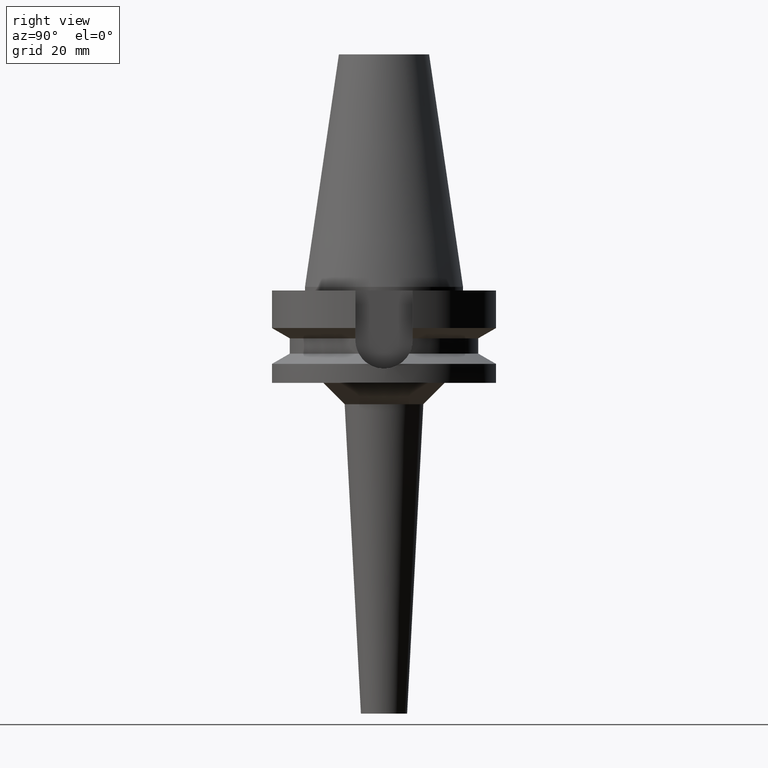
[diagram: clean part render]
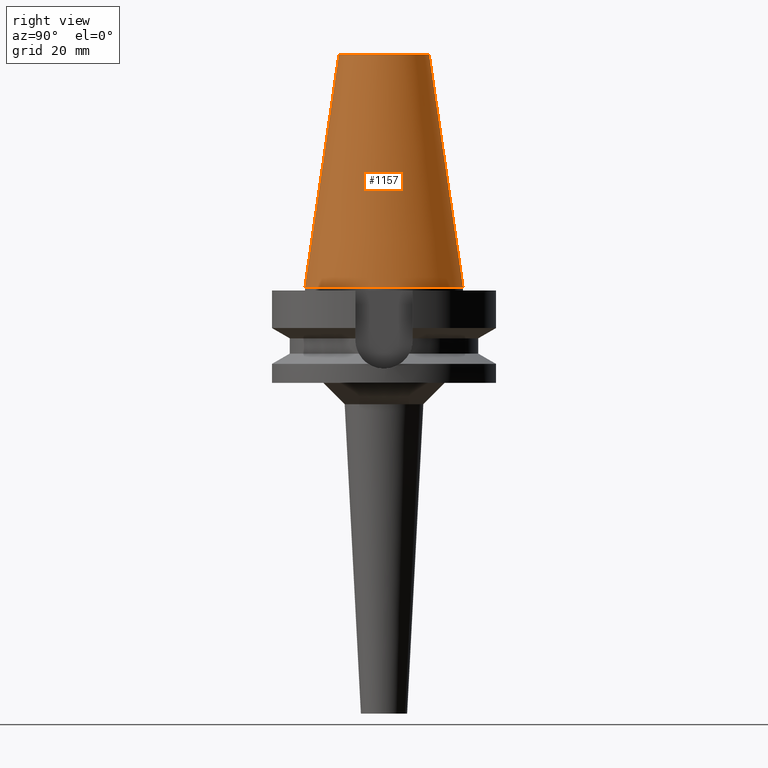
[diagram: same view with one face highlighted and labeled with its STEP entity id]
A machine part, right view. The second image highlights one B-rep face of the part: STEP entity #1157.
In plain terms, the highlighted conical surface has half-angle 8.297 deg.
Its self-contained STEP definition (entity closure, byte-faithful):
#26=CARTESIAN_POINT('',(0.E0,1.625106302469E-14,6.54E1));
#27=DIRECTION('',(0.E0,0.E0,-1.E0));
#28=DIRECTION('',(0.E0,1.E0,0.E0));
#29=AXIS2_PLACEMENT_3D('',#26,#27,#28);
#50=DIRECTION('',(0.E0,-1.443043893540E-1,-9.895333461856E-1));
#51=VECTOR('',#50,6.609175956738E1);
#52=CARTESIAN_POINT('',(0.E0,-1.268766899430E1,6.54E1));
#53=LINE('',#52,#51);
#65=DIRECTION('',(0.E0,1.443043893540E-1,-9.895333461856E-1));
#66=VECTOR('',#65,6.609175956738E1);
#67=CARTESIAN_POINT('',(0.E0,1.268766899430E1,6.54E1));
#68=LINE('',#67,#66);
#72=CARTESIAN_POINT('',(0.E0,1.625106302469E-14,2.842170943040E-14));
#73=DIRECTION('',(0.E0,0.E0,-1.E0));
#74=DIRECTION('',(0.E0,1.E0,0.E0));
#75=AXIS2_PLACEMENT_3D('',#72,#73,#74);
#963=CARTESIAN_POINT('',(0.E0,-1.268766899430E1,6.54E1));
#964=CARTESIAN_POINT('',(0.E0,1.268766899430E1,6.54E1));
#965=VERTEX_POINT('',#963);
#966=VERTEX_POINT('',#964);
#1100=CARTESIAN_POINT('',(0.E0,2.2225E1,6.394884621841E-14));
#1101=VERTEX_POINT('',#1100);
#1102=CARTESIAN_POINT('',(0.E0,-2.2225E1,6.394884621841E-14));
#1103=VERTEX_POINT('',#1102);
#1145=CARTESIAN_POINT('',(0.E0,1.625106302469E-14,3.27E1));
#1146=DIRECTION('',(0.E0,0.E0,-1.E0));
#1147=DIRECTION('',(0.E0,-1.E0,0.E0));
#1148=AXIS2_PLACEMENT_3D('',#1145,#1146,#1147);
#1149=CONICAL_SURFACE('',#1148,1.745633449715E1,8.297E0);
#1150=ORIENTED_EDGE('',*,*,#1135,.T.);
#1152=ORIENTED_EDGE('',*,*,#1151,.T.);
#1153=ORIENTED_EDGE('',*,*,#1138,.F.);
#1154=ORIENTED_EDGE('',*,*,#1119,.F.);
#1155=EDGE_LOOP('',(#1150,#1152,#1153,#1154));
#1156=FACE_OUTER_BOUND('',#1155,.F.);
#30=CIRCLE('',#29,1.268766899430E1);
#76=CIRCLE('',#75,2.2225E1);
#1119=EDGE_CURVE('',#966,#965,#30,.T.);
#1135=EDGE_CURVE('',#966,#1101,#68,.T.);
#1138=EDGE_CURVE('',#965,#1103,#53,.T.);
#1151=EDGE_CURVE('',#1101,#1103,#76,.T.);
#1157=ADVANCED_FACE('',(#1156),#1149,.T.);